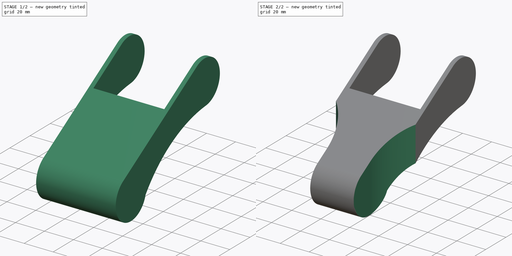
[diagram: build sequence overview — one tinted view per stage of 2, left to right]
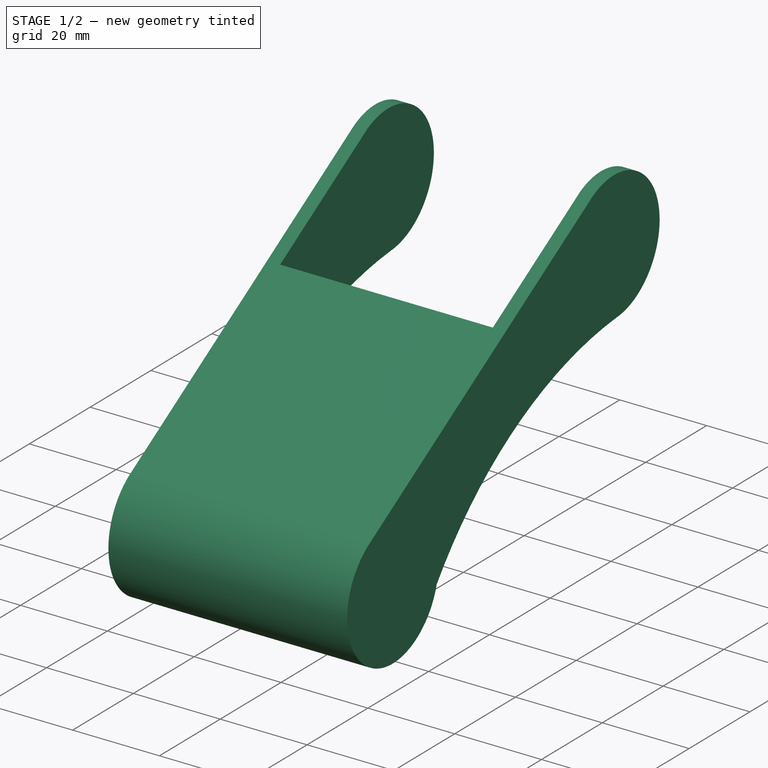
[diagram: stage 1 of 2 — iso view after this stage's code; geometry added in this stage tinted green]
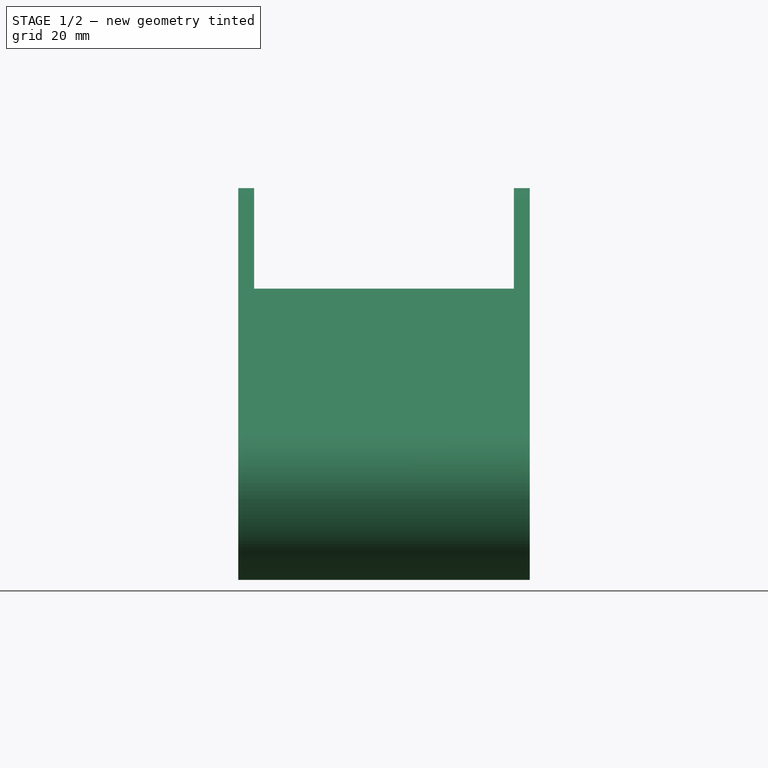
[diagram: stage 1 of 2 — front view after this stage's code; geometry added in this stage tinted green]
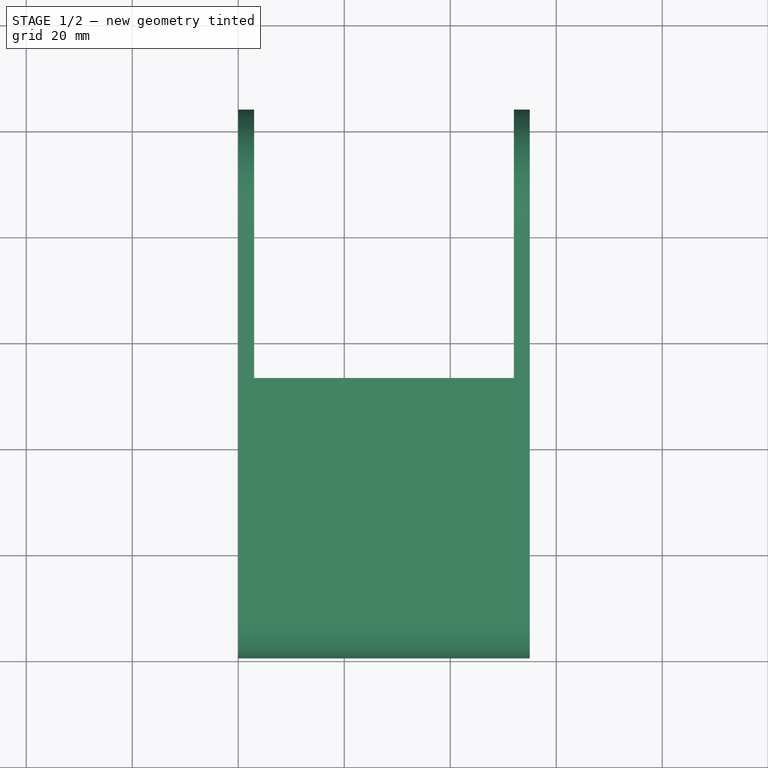
[diagram: stage 1 of 2 — top view after this stage's code; geometry added in this stage tinted green]
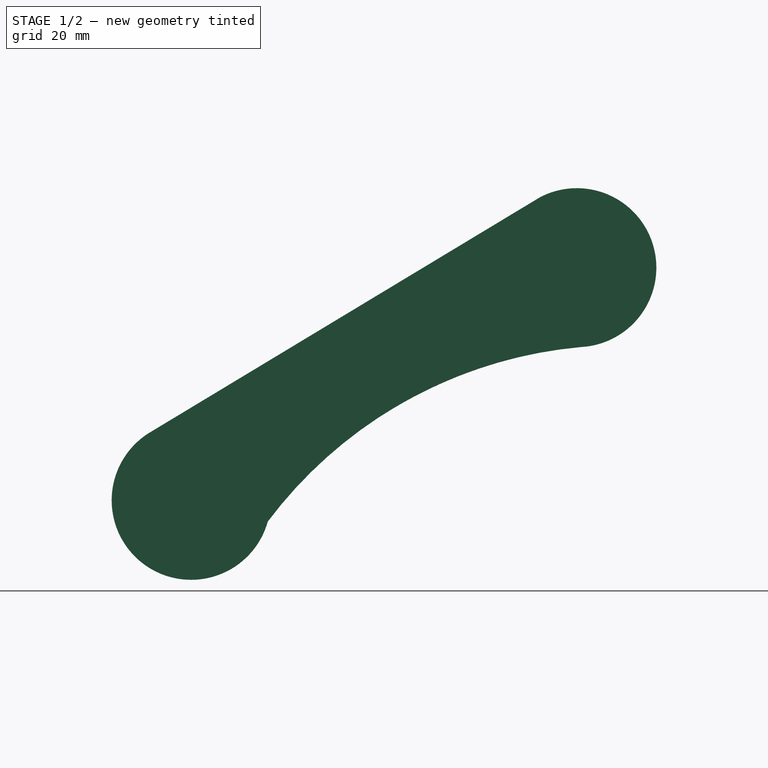
[diagram: stage 1 of 2 — right view after this stage's code; geometry added in this stage tinted green]
FCSTD DOCUMENT  (FreeCAD 0.20R29410 (Git))
Label: lowerLeg
License: All rights reserved
LicenseURL: http://en.wikipedia.org/wiki/All_rights_reserved
objects: Sketcher::SketchObject×3, PartDesign::Pocket×2, PartDesign::Pad×1, PartDesign::Body×1
note: 10 computed .brp shape members not serialized (recipe doc carries the construction recipe); baked Part::Feature solids carry a one-line shape summary decoded from their .brp

FEATURE [Sketcher::SketchObject] Sketch
  FullyConstrained = false
  MapMode = 5
  Placement = pos=(0,0,0) rot=(0.57735,0.57735,0.57735;2.0944rad)
  Support = -> [YZ_Plane]
  sketch-geometry (4):
    g0: ArcOfCircle CenterX=28.1209 CenterY=30.826 CenterZ=0 NormalX=0 NormalY=0 NormalZ=1 AngleXU=0 Radius=15 StartAngle=4.76974 EndAngle=8.33325
    g1: ArcOfCircle CenterX=-44.6609 CenterY=-13.0809 CenterZ=0 NormalX=0 NormalY=0 NormalZ=1 AngleXU=0 Radius=15 StartAngle=2.0822 EndAngle=6.01195
    g2: LineSegment StartX=-52.0019 StartY=0 StartZ=0 EndX=21.2039 EndY=44.136 EndZ=0
    g3: ArcOfCircle CenterX=36.2956 CenterY=-66.9271 CenterZ=0 NormalX=0 NormalY=0 NormalZ=1 AngleXU=0 Radius=83.1003 StartAngle=1.65894 EndAngle=2.49858
  constraints (8):
    c: PointOnObject(g1,g-1)
    c: Coincident(g2,g1)
    c: Coincident(g2,g0)
    c: Distance(g1,g1) = 15
    c: Distance(g0,g0) = 15
    c: Coincident(g3,g0)
    c: Coincident(g3,g1)
    c: Distance(g0,g1) = 85
FEATURE [PartDesign::Pad] Pad  label="LowerLeg"
  Direction = (1,-2e-16,3e-16)
  Length = 55
  Length2 = 10
  Placement = pos=(0,0,0) rot=(0.57735,0.57735,0.57735;2.0944rad)
  Profile = -> Sketch
  ReferenceAxis = -> Sketch [N_Axis]
  Type = 0
FEATURE [Sketcher::SketchObject] Sketch001
  AttachmentOffset = pos=(27.5,23,-50) rot=(0,0,1;0rad)
  FullyConstrained = true
  MapMode = 5
  Placement = pos=(27.5,23,-50) rot=(0,0,1;0rad)
  Support = -> [XY_Plane]
  sketch-geometry (5):
    g0: LineSegment StartX=-24.5 StartY=30.45 StartZ=0 EndX=-24.5 EndY=-30.45 EndZ=0
    g1: LineSegment StartX=-24.5 StartY=-30.45 StartZ=0 EndX=24.5 EndY=-30.45 EndZ=0
    g2: LineSegment StartX=24.5 StartY=-30.45 StartZ=0 EndX=24.5 EndY=30.45 EndZ=0
    g3: LineSegment StartX=24.5 StartY=30.45 StartZ=0 EndX=-24.5 EndY=30.45 EndZ=0
    g4: GeomPoint X=0 Y=0 Z=0
  constraints (12):
    c: Coincident(g0,g1)
    c: Coincident(g1,g2)
    c: Coincident(g2,g3)
    c: Coincident(g3,g0)
    c: Horizontal(g1)
    c: Horizontal(g3)
    c: Vertical(g0)
    c: Vertical(g2)
    c: Symmetric(g1,g0,g4)
    c: Coincident(g4,g-1)
    c: Distance(g3) = 49
    c: Distance(g0) = 60.9
FEATURE [PartDesign::Pocket] Pocket  label="ServoPocket"
  BaseFeature = -> Pad
  Direction = (0,0,-1)
  Length = 500
  Length2 = 5
  Placement = pos=(0,0,0) rot=(0.57735,0.57735,0.57735;2.0944rad)
  Profile = -> Sketch001
  ReferenceAxis = -> Sketch001 [N_Axis]
  Reversed = true
  Type = 0
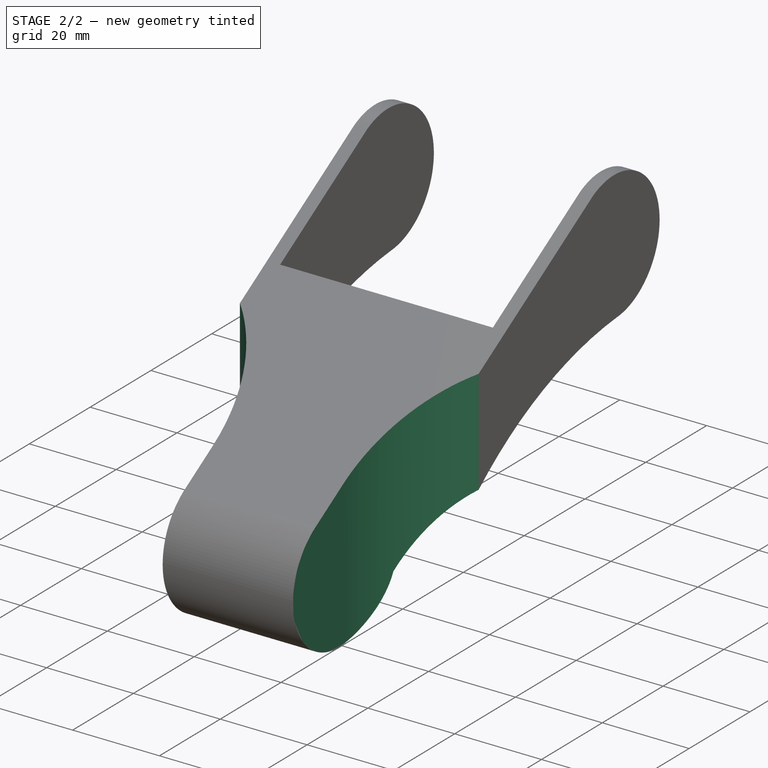
[diagram: stage 2 of 2 — iso view after this stage's code; geometry added in this stage tinted green]
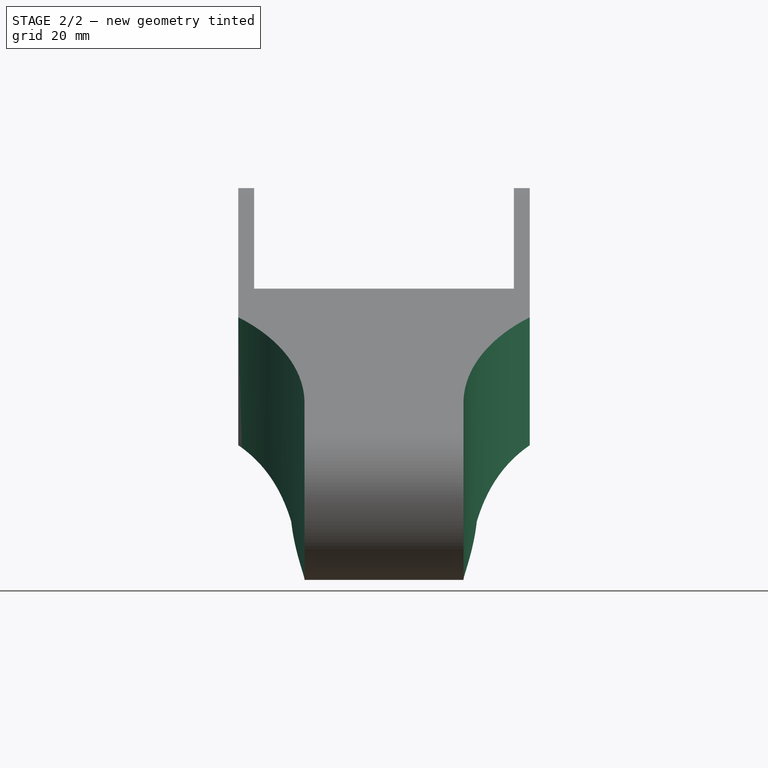
[diagram: stage 2 of 2 — front view after this stage's code; geometry added in this stage tinted green]
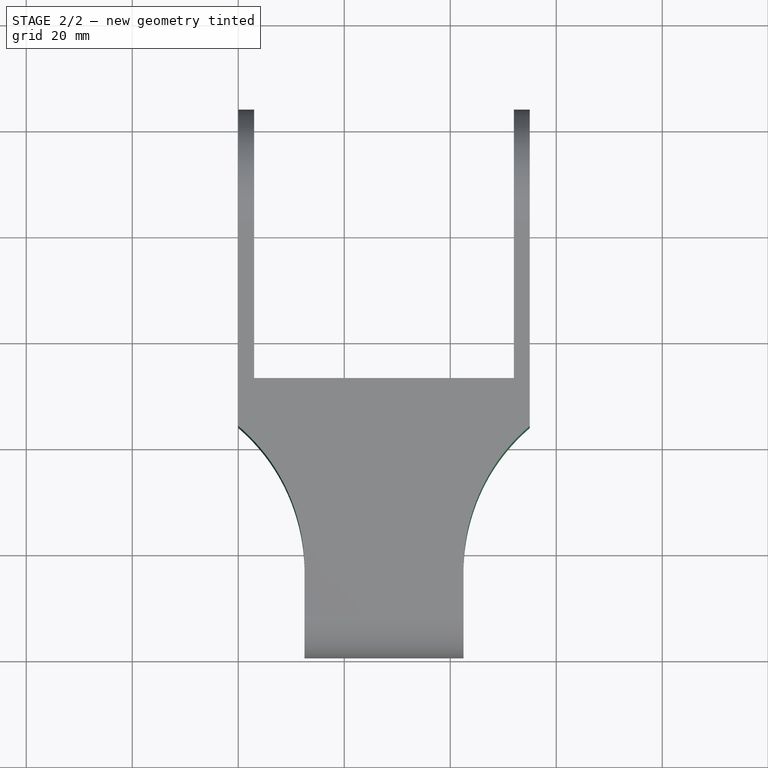
[diagram: stage 2 of 2 — top view after this stage's code; geometry added in this stage tinted green]
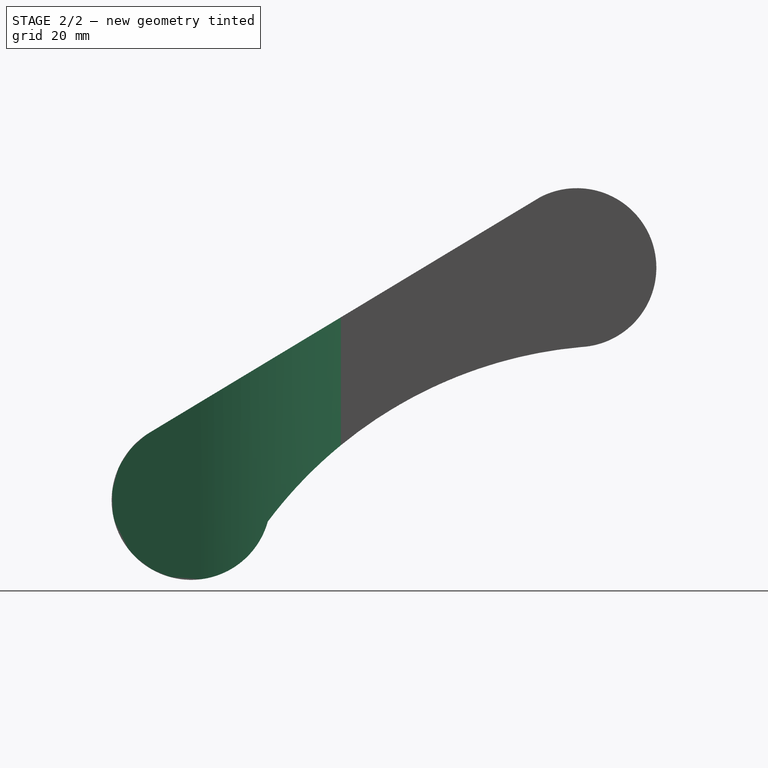
[diagram: stage 2 of 2 — right view after this stage's code; geometry added in this stage tinted green]
FEATURE [Sketcher::SketchObject] Sketch002
  AttachmentOffset = pos=(27.5,-35,-50) rot=(0,0,1;0rad)
  FullyConstrained = false
  MapMode = 5
  Placement = pos=(27.5,-35,-50) rot=(0,0,1;0rad)
  Support = -> [XY_Plane]
  sketch-geometry (12):
    g0: LineSegment StartX=-49.9999 StartY=-8.20997 StartZ=0 EndX=-49.9999 EndY=-38.21 EndZ=0
    g1: LineSegment StartX=-49.9999 StartY=-38.21 StartZ=0 EndX=-15 EndY=-38.21 EndZ=0
    g2: LineSegment StartX=-15 StartY=-38.21 StartZ=0 EndX=-15 EndY=-7.83899 EndZ=0
    g3: GeomPoint X=-32.499 Y=-23.0297 Z=0
    g4: LineSegment StartX=15 StartY=-7.83899 StartZ=0 EndX=15 EndY=-38.2204 EndZ=0
    g5: LineSegment StartX=15 StartY=-38.2204 StartZ=0 EndX=49.9979 EndY=-38.2204 EndZ=0
    g6: LineSegment StartX=49.9979 StartY=-38.2204 StartZ=0 EndX=49.9979 EndY=-8.22037 EndZ=0
    g7: GeomPoint X=32.499 Y=-23.0297 Z=0
    g8: ArcOfCircle CenterX=-49.9999 CenterY=-8.20997 CenterZ=0 NormalX=0 NormalY=0 NormalZ=1 AngleXU=0 Radius=35.0019 StartAngle=0.0105989 EndAngle=1.5708
    g9: ArcOfCircle CenterX=49.9979 CenterY=-8.22037 CenterZ=0 NormalX=0 NormalY=0 NormalZ=1 AngleXU=0 Radius=35 StartAngle=1.57074 EndAngle=3.1307
    g10: LineSegment StartX=-49.9999 StartY=26.7919 StartZ=0 EndX=-49.9999 EndY=-8.20997 EndZ=0
    g11: LineSegment StartX=50 StartY=26.7796 StartZ=0 EndX=49.9979 EndY=-8.22037 EndZ=0
  constraints (26):
    c: Coincident(g0,g1)
    c: Coincident(g1,g2)
    c: Horizontal(g1)
    c: Vertical(g0)
    c: Vertical(g2)
    c: Coincident(g4,g5)
    c: Coincident(g5,g6)
    c: Horizontal(g5)
    c: Vertical(g4)
    c: Vertical(g6)
    c: Symmetric(g5,g4,g7)
    c: Symmetric(g3,g7,g-2)
    c: DistanceX(g2,g4) = 30
    c: Symmetric(g2,g4,g-2)
    c: Coincident(g8,g0)
    c: Coincident(g8,g2)
    c: Coincident(g9,g6)
    c: Coincident(g9,g4)
    c: Coincident(g10,g8)
    c: Coincident(g10,g0)
    c: Vertical(g10)
    c: Coincident(g11,g9)
    c: Coincident(g11,g6)
    c: DistanceY(g11,g11) = 35
    c: DistanceY(g6,g6) = 30
    c: DistanceY(g0,g0) = 30
FEATURE [PartDesign::Pocket] Pocket001
  BaseFeature = -> Pocket
  Direction = (0,0,-1)
  Length = 500
  Length2 = 5
  Placement = pos=(0,0,0) rot=(0.57735,0.57735,0.57735;2.0944rad)
  Profile = -> Sketch002
  ReferenceAxis = -> Sketch002 [N_Axis]
  Reversed = true
  Type = 0
FEATURE [PartDesign::Body] Body
  Group = -> [Sketch,Pad,Sketch001,Pocket,Sketch002,Pocket001]
  Origin = -> Origin
  Tip = -> Pocket001
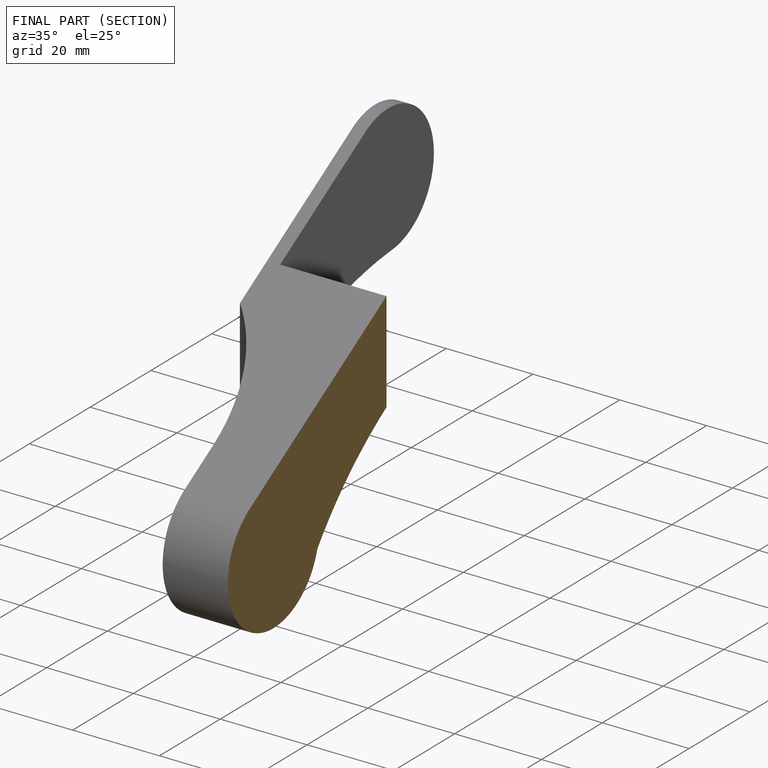
[diagram: finished part — half-section view (interior)]
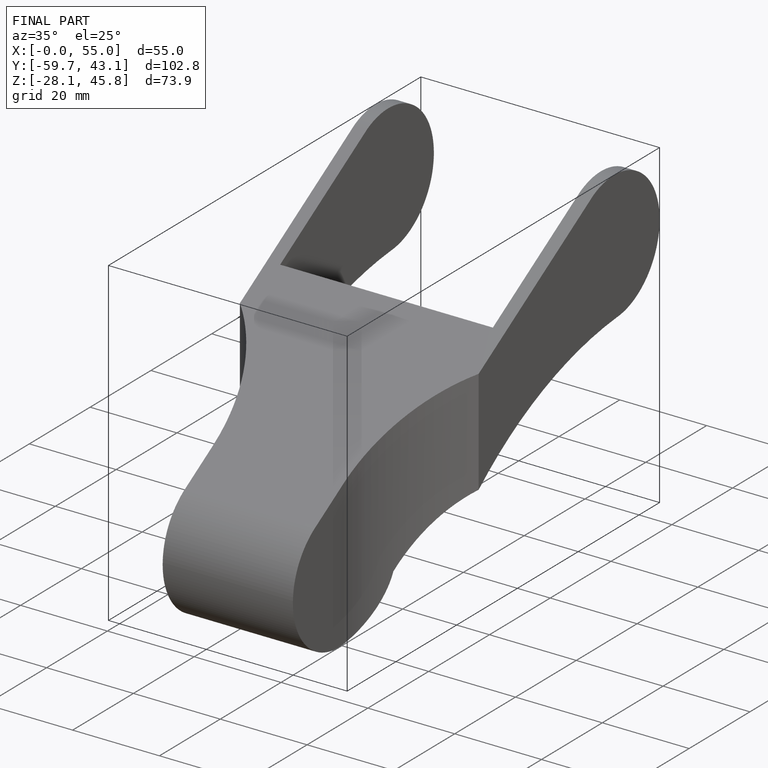
[diagram: finished part — iso view with bounding-box wireframe]
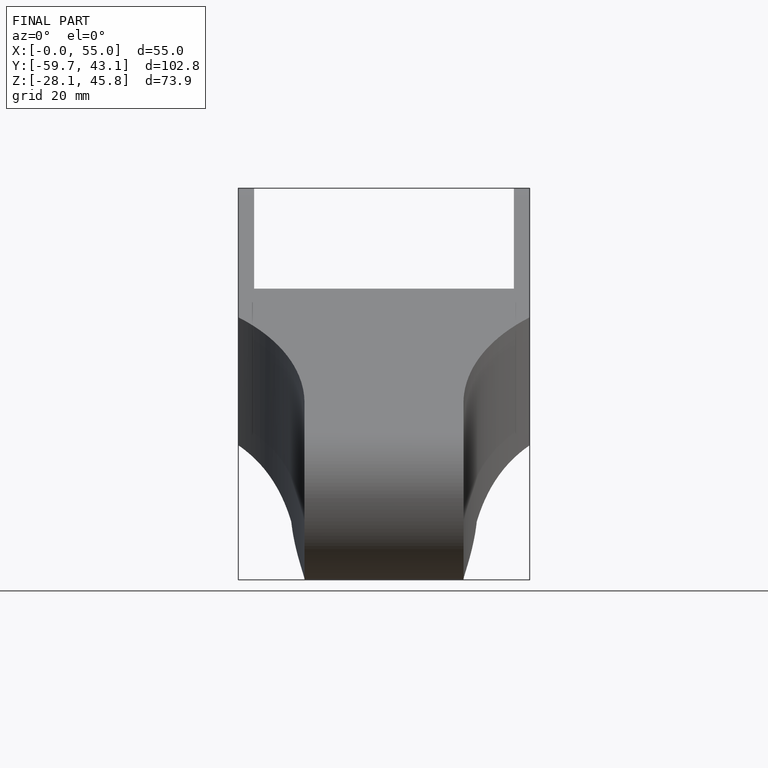
[diagram: finished part — front view with bounding-box wireframe]
